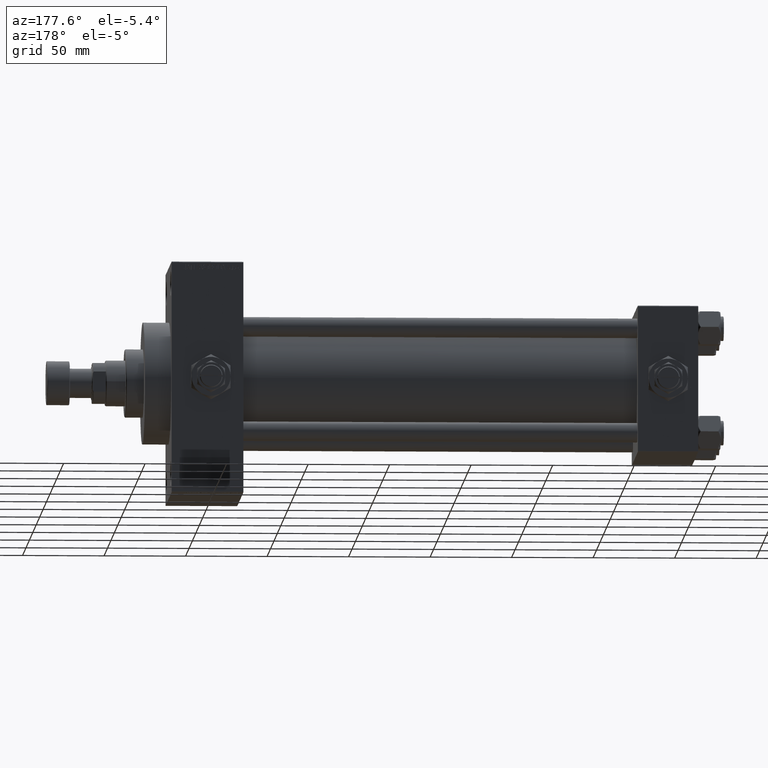
[diagram: clean part render]
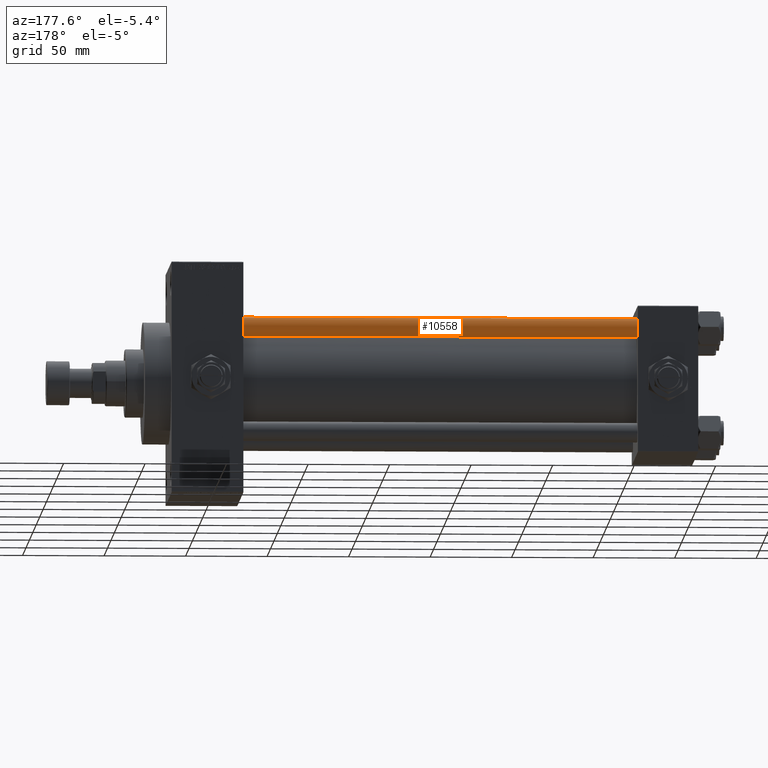
[diagram: same view with one face highlighted and labeled with its STEP entity id]
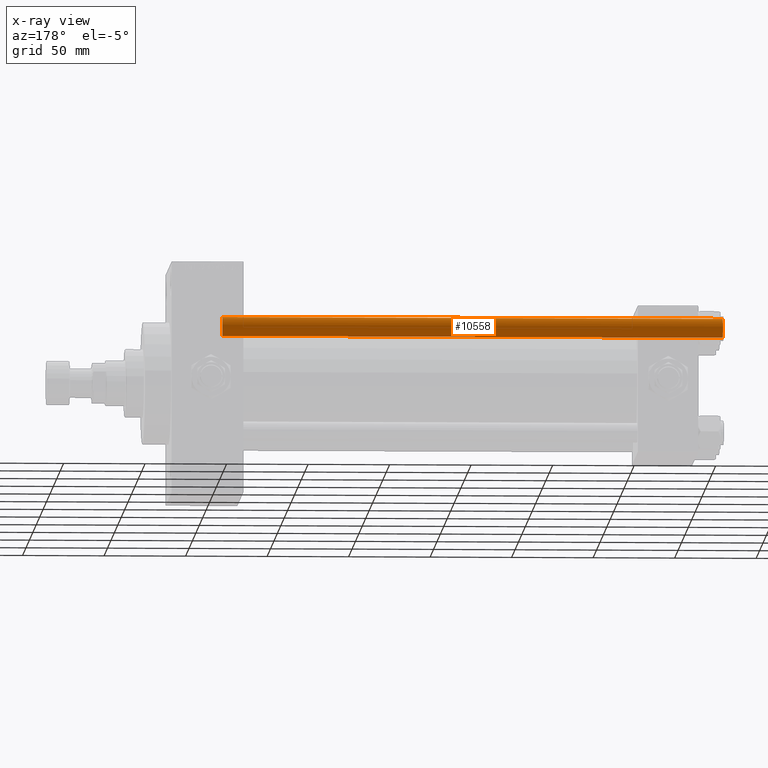
[diagram: x-ray of the same camera — body ghosted, the highlighted face saturated]
A machine part, auxiliary view. The second image highlights one B-rep face of the part: STEP entity #10558.
The next image is the same camera in x-ray: the body ghosted, the highlighted face saturated — about 0% of this face is hidden behind the body in this view.
In plain terms, the highlighted cylindrical surface (edge-blend (fillet) strip) has radius 6 mm, axis along (-1, -0, 0).
Its self-contained STEP definition (entity closure, byte-faithful):
#163 = VERTEX_POINT ( 'NONE', #35885 ) ;
#310 = CARTESIAN_POINT ( 'NONE',  ( 0.000000000000000000, 0.000000000000000000, 307.4999999999999432 ) ) ;
#1893 = ORIENTED_EDGE ( 'NONE', *, *, #47115, .T. ) ;
#2987 = ORIENTED_EDGE ( 'NONE', *, *, #25346, .T. ) ;
#3353 = EDGE_CURVE ( 'NONE', #23975, #163, #7018, .T. ) ;
#3724 = CARTESIAN_POINT ( 'NONE',  ( 6.000000000000000888, 7.347880794884120722E-16, 308.0000000000000000 ) ) ;
#4690 = DIRECTION ( 'NONE',  ( -0.000000000000000000, -0.000000000000000000, -1.000000000000000000 ) ) ;
#5475 = DIRECTION ( 'NONE',  ( -1.000000000000000000, 0.000000000000000000, 0.000000000000000000 ) ) ;
#5595 = EDGE_LOOP ( 'NONE', ( #1893, #2987, #8278, #31669 ) ) ;
#7018 = CIRCLE ( 'NONE', #27087, 6.000000000000000888 ) ;
#8278 = ORIENTED_EDGE ( 'NONE', *, *, #3353, .T. ) ;
#9960 = DIRECTION ( 'NONE',  ( -0.000000000000000000, -0.000000000000000000, 1.000000000000000000 ) ) ;
#10558 = ADVANCED_FACE ( 'NONE', ( #33370 ), #48490, .T. ) ;
#11309 = CARTESIAN_POINT ( 'NONE',  ( 6.000000000000000888, 7.347880794884120722E-16, 0.5000000000000559552 ) ) ;
#13462 = VERTEX_POINT ( 'NONE', #16424 ) ;
#16389 = DIRECTION ( 'NONE',  ( 0.000000000000000000, 0.000000000000000000, -1.000000000000000000 ) ) ;
#16424 = CARTESIAN_POINT ( 'NONE',  ( -6.000000000000000888, 0.000000000000000000, 307.4999999999999432 ) ) ;
#20775 = CARTESIAN_POINT ( 'NONE',  ( 0.000000000000000000, 0.000000000000000000, 0.5000000000000559552 ) ) ;
#22700 = VECTOR ( 'NONE', #38718, 1000.000000000000000 ) ;
#23975 = VERTEX_POINT ( 'NONE', #11309 ) ;
#25167 = EDGE_CURVE ( 'NONE', #13462, #163, #43699, .T. ) ;
#25346 = EDGE_CURVE ( 'NONE', #40294, #23975, #38215, .T. ) ;
#25801 = AXIS2_PLACEMENT_3D ( 'NONE', #29574, #44938, #5475 ) ;
#27087 = AXIS2_PLACEMENT_3D ( 'NONE', #20775, #9960, #36151 ) ;
#27323 = AXIS2_PLACEMENT_3D ( 'NONE', #310, #16389, #39553 ) ;
#29574 = CARTESIAN_POINT ( 'NONE',  ( 0.000000000000000000, 0.000000000000000000, 308.0000000000000000 ) ) ;
#31669 = ORIENTED_EDGE ( 'NONE', *, *, #25167, .F. ) ;
#32104 = CARTESIAN_POINT ( 'NONE',  ( -6.000000000000000888, 0.000000000000000000, 308.0000000000000000 ) ) ;
#33197 = VECTOR ( 'NONE', #4690, 1000.000000000000000 ) ;
#33370 = FACE_OUTER_BOUND ( 'NONE', #5595, .T. ) ;
#35885 = CARTESIAN_POINT ( 'NONE',  ( -6.000000000000000888, 0.000000000000000000, 0.5000000000000559552 ) ) ;
#36151 = DIRECTION ( 'NONE',  ( 1.000000000000000000, 0.000000000000000000, 0.000000000000000000 ) ) ;
#38215 = LINE ( 'NONE', #3724, #22700 ) ;
#38718 = DIRECTION ( 'NONE',  ( -0.000000000000000000, -0.000000000000000000, -1.000000000000000000 ) ) ;
#39553 = DIRECTION ( 'NONE',  ( 1.000000000000000000, 0.000000000000000000, 0.000000000000000000 ) ) ;
#40294 = VERTEX_POINT ( 'NONE', #49773 ) ;
#42619 = CIRCLE ( 'NONE', #27323, 6.000000000000000888 ) ;
#43699 = LINE ( 'NONE', #32104, #33197 ) ;
#44938 = DIRECTION ( 'NONE',  ( -0.000000000000000000, -0.000000000000000000, -1.000000000000000000 ) ) ;
#47115 = EDGE_CURVE ( 'NONE', #13462, #40294, #42619, .T. ) ;
#48490 = CYLINDRICAL_SURFACE ( 'NONE', #25801, 6.000000000000000888 ) ;
#49773 = CARTESIAN_POINT ( 'NONE',  ( 6.000000000000000888, 7.347880794884120722E-16, 307.4999999999999432 ) ) ;